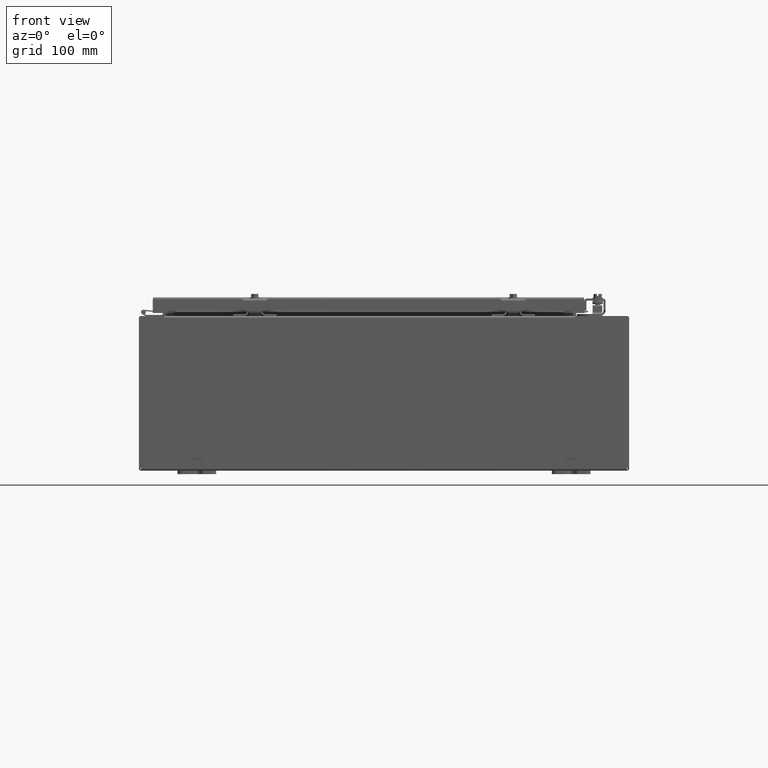
[diagram: clean part render]
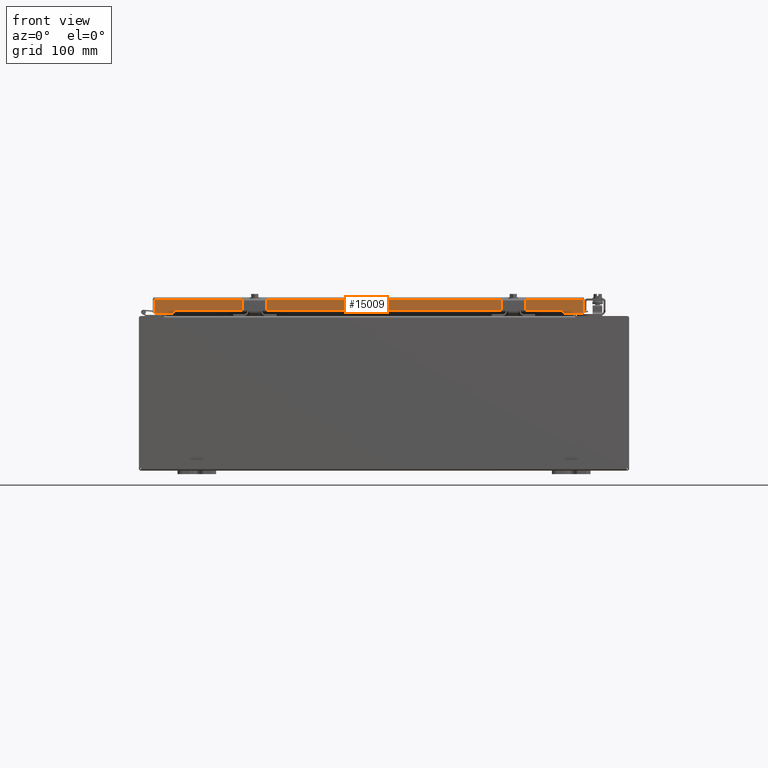
[diagram: same view with one face highlighted and labeled with its STEP entity id]
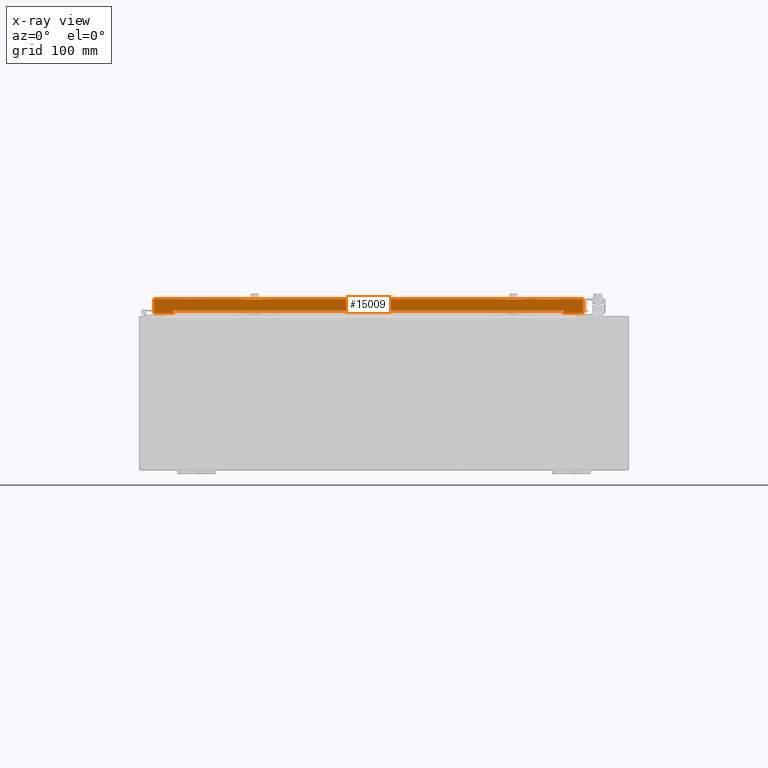
[diagram: x-ray of the same camera — body ghosted, the highlighted face saturated]
A machine part, front view. The second image highlights one B-rep face of the part: STEP entity #15009.
The next image is the same camera in x-ray: the body ghosted, the highlighted face saturated — about 0% of this face is hidden behind the body in this view.
In plain terms, the highlighted planar face has unit normal (0, -1, 0).
Its self-contained STEP definition (entity closure, byte-faithful):
#859=PLANE('',#16210);
#1553=FACE_OUTER_BOUND('',#2460,.T.);
#2460=EDGE_LOOP('',(#12325,#12326,#12327,#12328,#12329,#12330,#12331,#12332,
#12333,#12334,#12335,#12336));
#3774=LINE('',#24160,#5163);
#3777=LINE('',#24166,#5166);
#3780=LINE('',#24174,#5169);
#3783=LINE('',#24178,#5172);
#3793=LINE('',#24199,#5182);
#3795=LINE('',#24203,#5184);
#3797=LINE('',#24206,#5186);
#3798=LINE('',#24209,#5187);
#3799=LINE('',#24211,#5188);
#3800=LINE('',#24213,#5189);
#3801=LINE('',#24215,#5190);
#3802=LINE('',#24216,#5191);
#5163=VECTOR('',#19505,20.1943357864376);
#5166=VECTOR('',#19510,0.000199999999998583);
#5169=VECTOR('',#19515,0.125632065620542);
#5172=VECTOR('',#19520,0.000200000000004178);
#5182=VECTOR('',#19534,0.125632065620542);
#5184=VECTOR('',#19538,0.000199999999998583);
#5186=VECTOR('',#19542,0.000199999999999981);
#5187=VECTOR('',#19545,0.999799999999998);
#5188=VECTOR('',#19546,0.70725);
#5189=VECTOR('',#19547,22.1943357864376);
#5190=VECTOR('',#19548,0.70725);
#5191=VECTOR('',#19549,0.999799999999998);
#7057=VERTEX_POINT('',#24150);
#7058=VERTEX_POINT('',#24154);
#7060=VERTEX_POINT('',#24164);
#7063=VERTEX_POINT('',#24171);
#7064=VERTEX_POINT('',#24173);
#7072=VERTEX_POINT('',#24196);
#7073=VERTEX_POINT('',#24198);
#7074=VERTEX_POINT('',#24202);
#7075=VERTEX_POINT('',#24208);
#7076=VERTEX_POINT('',#24210);
#7077=VERTEX_POINT('',#24212);
#7078=VERTEX_POINT('',#24214);
#8877=EDGE_CURVE('',#7057,#7058,#3774,.T.);
#8880=EDGE_CURVE('',#7058,#7060,#3777,.T.);
#8883=EDGE_CURVE('',#7064,#7063,#3780,.T.);
#8886=EDGE_CURVE('',#7060,#7064,#3783,.T.);
#8896=EDGE_CURVE('',#7073,#7072,#3793,.T.);
#8898=EDGE_CURVE('',#7074,#7057,#3795,.T.);
#8900=EDGE_CURVE('',#7072,#7074,#3797,.T.);
#8901=EDGE_CURVE('',#7075,#7063,#3798,.T.);
#8902=EDGE_CURVE('',#7076,#7075,#3799,.T.);
#8903=EDGE_CURVE('',#7076,#7077,#3800,.T.);
#8904=EDGE_CURVE('',#7078,#7077,#3801,.T.);
#8905=EDGE_CURVE('',#7073,#7078,#3802,.T.);
#12325=ORIENTED_EDGE('',*,*,#8883,.T.);
#12326=ORIENTED_EDGE('',*,*,#8901,.F.);
#12327=ORIENTED_EDGE('',*,*,#8902,.F.);
#12328=ORIENTED_EDGE('',*,*,#8903,.T.);
#12329=ORIENTED_EDGE('',*,*,#8904,.F.);
#12330=ORIENTED_EDGE('',*,*,#8905,.F.);
#12331=ORIENTED_EDGE('',*,*,#8896,.T.);
#12332=ORIENTED_EDGE('',*,*,#8900,.T.);
#12333=ORIENTED_EDGE('',*,*,#8898,.T.);
#12334=ORIENTED_EDGE('',*,*,#8877,.T.);
#12335=ORIENTED_EDGE('',*,*,#8880,.T.);
#12336=ORIENTED_EDGE('',*,*,#8886,.T.);
#15009=ADVANCED_FACE('',(#1553),#859,.T.);
#16210=AXIS2_PLACEMENT_3D('',#24207,#19543,#19544);
#19505=DIRECTION('',(1.,-7.0102992686733E-20,1.39935211921042E-33));
#19510=DIRECTION('',(5.53178599296268E-37,2.02447281341451E-14,1.));
#19515=DIRECTION('',(-5.53178599296268E-37,-2.02447281341451E-14,-1.));
#19520=DIRECTION('',(1.,-7.0102992686733E-20,1.39935211921042E-33));
#19534=DIRECTION('',(5.53178599296268E-37,2.02447281341451E-14,1.));
#19538=DIRECTION('',(-5.53178599296268E-37,-2.02447281341451E-14,-1.));
#19542=DIRECTION('',(1.,-7.0102992686733E-20,1.39935211921042E-33));
#19543=DIRECTION('center_axis',(1.93266727553955E-51,-1.,2.40579037382672E-14));
#19544=DIRECTION('ref_axis',(1.,0.,0.));
#19545=DIRECTION('',(-1.,1.11949983626385E-50,5.53178599296268E-37));
#19546=DIRECTION('',(-5.53178599296268E-37,-2.02525427944221E-14,-1.));
#19547=DIRECTION('',(-1.,7.0102992686733E-20,-1.41921068080583E-33));
#19548=DIRECTION('',(3.95533735668039E-15,2.02525427944221E-14,1.));
#19549=DIRECTION('',(-1.,1.11949983626385E-50,5.53178599296268E-37));
#24150=CARTESIAN_POINT('',(1.07470710678118,-1.32112168973604E-14,-0.613067934379456));
#24154=CARTESIAN_POINT('',(21.2690428932188,-1.32112168973604E-14,-0.613067934379456));
#24160=CARTESIAN_POINT('',(16.2204589466094,-1.32112168973604E-14,-0.613067934379456));
#24164=CARTESIAN_POINT('',(21.2690428932188,-1.32112168973604E-14,-0.612867934379458));
#24166=CARTESIAN_POINT('',(21.2690428932188,-1.04575141197468E-14,-0.477523982925324));
#24171=CARTESIAN_POINT('',(21.2692428932188,-1.57463718354808E-14,-0.738499999999999));
#24173=CARTESIAN_POINT('',(21.2692428932188,-1.32112168973604E-14,-0.612867934379458));
#24174=CARTESIAN_POINT('',(21.2692428932188,-1.1725091588807E-14,-0.540340015735592));
#24178=CARTESIAN_POINT('',(16.2205589466094,-1.32112168973604E-14,-0.612867934379458));
#24196=CARTESIAN_POINT('',(1.07450710678118,-1.32112168973604E-14,-0.612867934379458));
#24198=CARTESIAN_POINT('',(1.07450710678118,-1.57463718354808E-14,-0.738499999999999));
#24199=CARTESIAN_POINT('',(1.07450710678118,-1.04575141197468E-14,-0.477523982925324));
#24202=CARTESIAN_POINT('',(1.07470710678118,-1.32112168973604E-14,-0.612867934379458));
#24203=CARTESIAN_POINT('',(1.07470710678118,-1.1725091588807E-14,-0.540340015735592));
#24206=CARTESIAN_POINT('',(6.12329105339059,-1.32112168973604E-14,-0.612867934379458));
#24207=CARTESIAN_POINT('Origin',(11.171875,2.64661433626194E-13,11.0435338422308));
#24208=CARTESIAN_POINT('',(22.2690428932188,-1.57463718354808E-14,-0.738499999999999));
#24209=CARTESIAN_POINT('',(22.2690428932188,-1.57463718354808E-14,-0.738499999999999));
#24210=CARTESIAN_POINT('',(22.2690428932188,-1.42056095670542E-15,-0.0312499999999979));
#24211=CARTESIAN_POINT('',(22.2690428932188,-1.42056095670542E-15,-0.0312499999999979));
#24212=CARTESIAN_POINT('',(0.0747071067811843,-1.42056095670542E-15,-0.0312499999999979));
#24213=CARTESIAN_POINT('',(11.171875,-1.42056095670542E-15,-0.0312499999999979));
#24214=CARTESIAN_POINT('',(0.0747071067811839,-1.57463718354808E-14,-0.738499999999999));
#24215=CARTESIAN_POINT('',(0.0747071067811868,-1.42056095670542E-15,-0.0312499999999979));
#24216=CARTESIAN_POINT('',(22.2690428932188,-1.57463718354808E-14,-0.738499999999999));